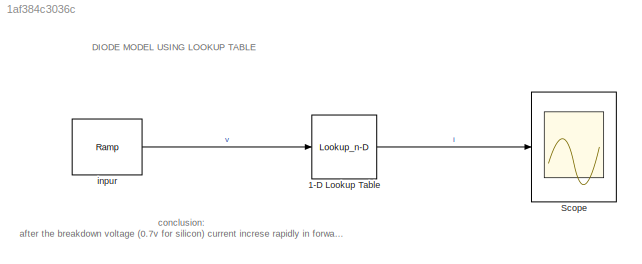
MODEL slx_1af384c3036c
KIND model
CONFIG AbsTol = auto
CONFIG EnableMultiTasking = off
CONFIG FixedStep = auto
CONFIG MaxStep = auto
CONFIG MinStep = auto
CONFIG RelTol = 1e-3
CONFIG SampleTimeConstraint = Unconstrained
CONFIG Solver = FixedStepDiscrete
CONFIG SolverName = FixedStepDiscrete
CONFIG StartTime = 0.0
CONFIG StopTime = 2.4
BLOCK [Lookup_n-D] 1-D Lookup Table
  BreakpointsForDimension1 = [0 0.1 0.2 0.3 0.4 0.6 0.8 1.0 1.2 1.4 1.6 1.8 2.0 2.2 2.4]
  IndexSearchMethod = Linear search
  InternalRulePriority = Speed
  NumberOfTableDimensions = 1
  Ports = [1, 1]
  RndMeth = Simplest
  Table = [0 0 0 0 0.5 1 2 3 5 7.5 10 15 20 25 30]
BLOCK [Scope] Scope
  Floating = off
  NumInputPorts = 1
  Ports = [1]
  ScopeSpecificationString = Simulink.scopes.TimeScopeBlockCfg('CurrentConfiguration', extmgr.ConfigurationSet(extmgr.Configuration('Core','General UI',true),extmgr.Configuration('Core','Source UI',true),extmgr.Configuration('Sources','WiredSimulink',true),extmgr.Configuration('Visuals','Time Domain',true,'SerializedDisplays',{struct('MinYLimReal','-3.75','MaxYLimReal','33.75','YLabelReal','','MinYLimMag','0.00000','MaxYLimMa...<+1361ch>
BLOCK [Reference] inpur  REF=simulink/Sources/Ramp
  Ports = [0, 1]
  SourceBlock = simulink/Sources/Ramp
  SourceProductBaseCode = SL
  SourceType = Ramp
ANNOTATION (root): DIODE MODEL USING LOOKUP TABLE
ANNOTATION (root): conclusion: after the breakdown voltage (0.7v for silicon) current increse rapidly in forward bias condition
LINE 1-D Lookup Table:1 -> Scope:1
LINE inpur:1 -> 1-D Lookup Table:1
